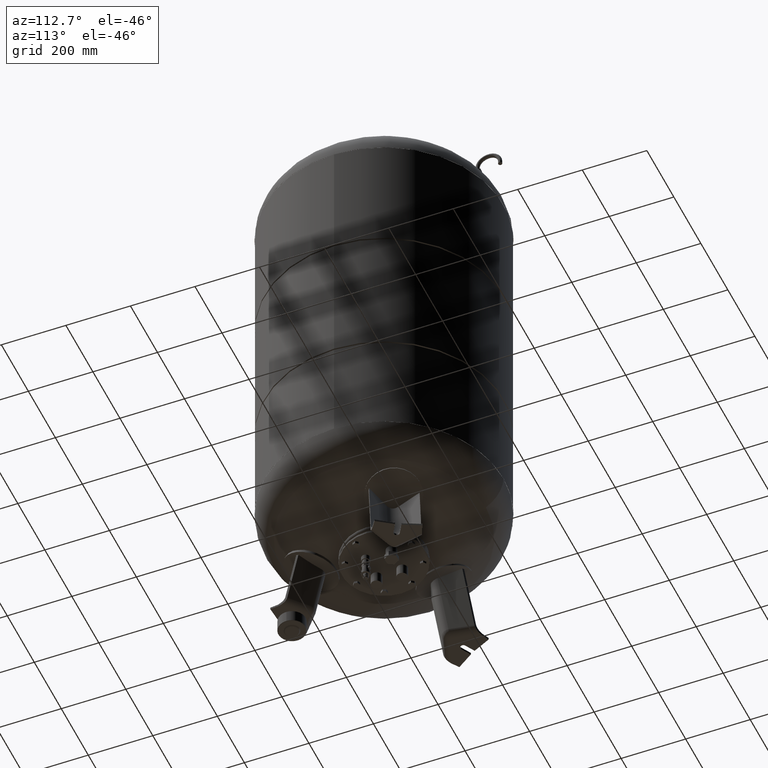
[diagram: clean part render]
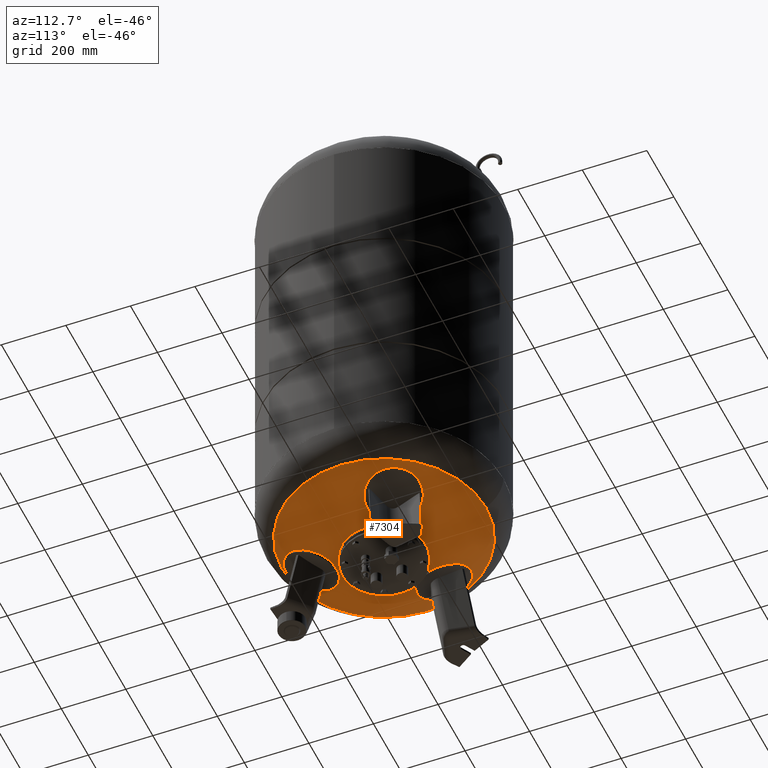
[diagram: same view with one face highlighted and labeled with its STEP entity id]
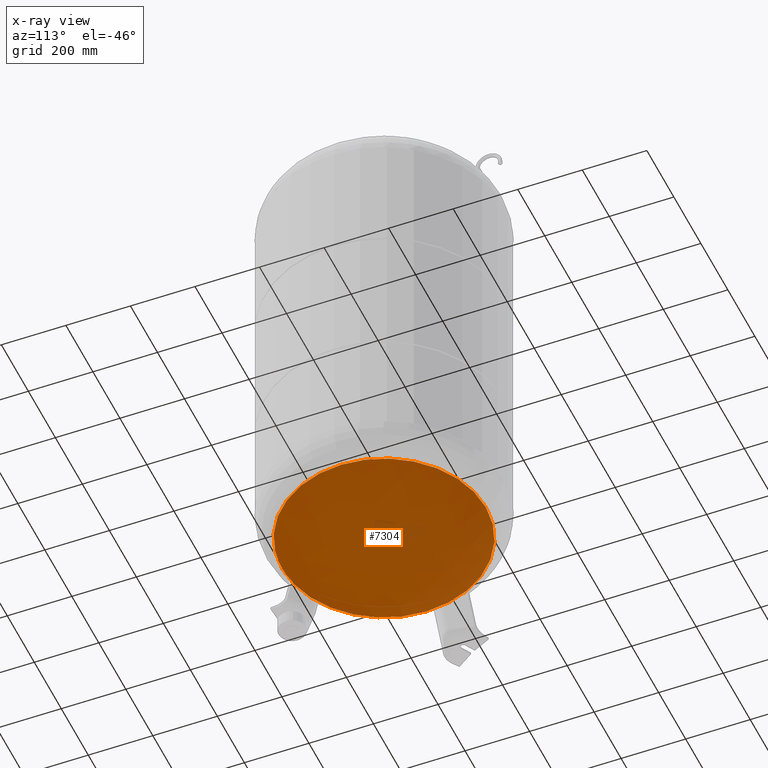
[diagram: x-ray of the same camera — body ghosted, the highlighted face saturated]
A machine part, auxiliary view. The second image highlights one B-rep face of the part: STEP entity #7304.
The next image is the same camera in x-ray: the body ghosted, the highlighted face saturated — about 3% of this face is hidden behind the body in this view.
In plain terms, the highlighted spherical surface has radius 594 mm.
Its self-contained STEP definition (entity closure, byte-faithful):
#7243=CARTESIAN_POINT('',(0.0,-315.931034482758610,270.985505725079410));
#7244=VERTEX_POINT('',#7243);
#7260=CARTESIAN_POINT('',(-3.868912E-014,315.931034482758610,270.985505725079630));
#7261=VERTEX_POINT('',#7260);
#7269=CARTESIAN_POINT('',(-315.931034482758610,-1.671377E-014,270.985505725079520));
#7270=VERTEX_POINT('',#7269);
#7271=CARTESIAN_POINT('',(0.0,-1.671377E-014,270.985505725079520));
#7272=DIRECTION('',(0.0,0.0,1.0));
#7273=DIRECTION('',(-1.0,0.0,0.0));
#7274=AXIS2_PLACEMENT_3D('',#7271,#7272,#7273);
#7275=CIRCLE('',#7274,315.931034482758610);
#7276=EDGE_CURVE('',#7261,#7270,#7275,.T.);
#7278=CARTESIAN_POINT('',(0.0,-1.671377E-014,270.985505725079520));
#7279=DIRECTION('',(0.0,0.0,1.0));
#7280=DIRECTION('',(-1.0,0.0,0.0));
#7281=AXIS2_PLACEMENT_3D('',#7278,#7279,#7280);
#7282=CIRCLE('',#7281,315.931034482758610);
#7283=EDGE_CURVE('',#7270,#7244,#7282,.T.);
#7288=CARTESIAN_POINT('',(0.0,-1.091160E-013,774.0));
#7289=DIRECTION('',(0.0,-1.0,0.0));
#7290=DIRECTION('',(1.0,0.0,0.0));
#7291=AXIS2_PLACEMENT_3D('',#7288,#7289,#7290);
#7292=SPHERICAL_SURFACE('',#7291,594.0);
#7293=ORIENTED_EDGE('',*,*,#7283,.F.);
#7294=ORIENTED_EDGE('',*,*,#7276,.F.);
#7295=CARTESIAN_POINT('',(0.0,-1.671377E-014,270.985505725079520));
#7296=DIRECTION('',(0.0,0.0,1.0));
#7297=DIRECTION('',(-1.0,0.0,0.0));
#7298=AXIS2_PLACEMENT_3D('',#7295,#7296,#7297);
#7299=CIRCLE('',#7298,315.931034482758610);
#7300=EDGE_CURVE('',#7244,#7261,#7299,.T.);
#7301=ORIENTED_EDGE('',*,*,#7300,.F.);
#7302=EDGE_LOOP('',(#7293,#7294,#7301));
#7303=FACE_OUTER_BOUND('',#7302,.T.);
#7304=ADVANCED_FACE('',(#7303),#7292,.T.);